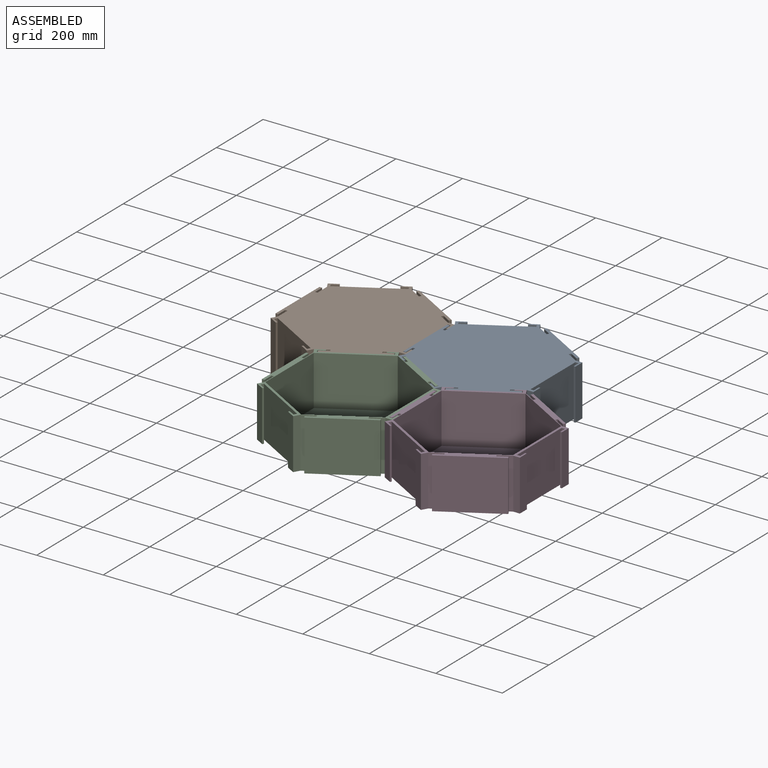
[diagram: assembled view]
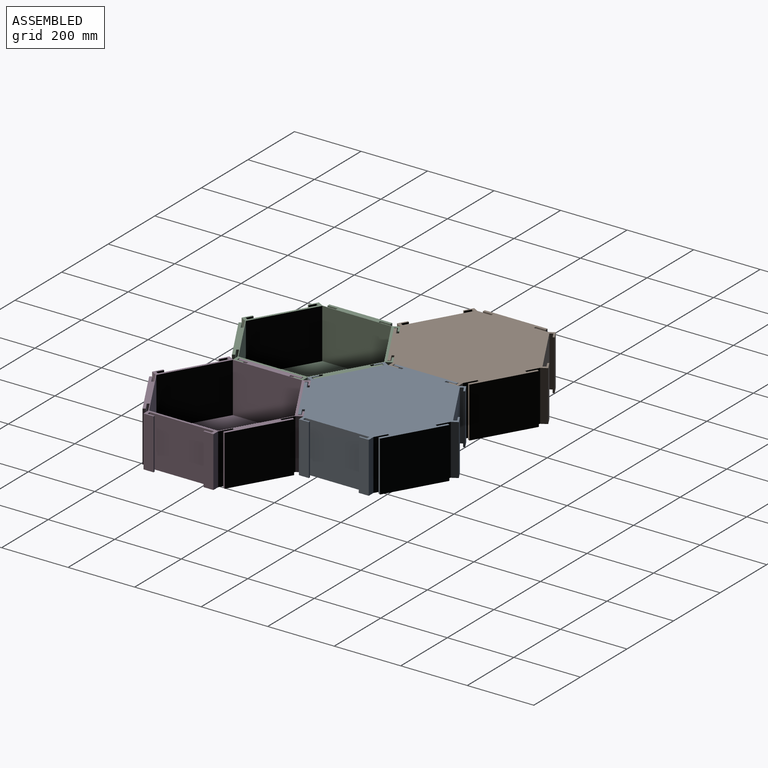
[diagram: assembled view, second angle]
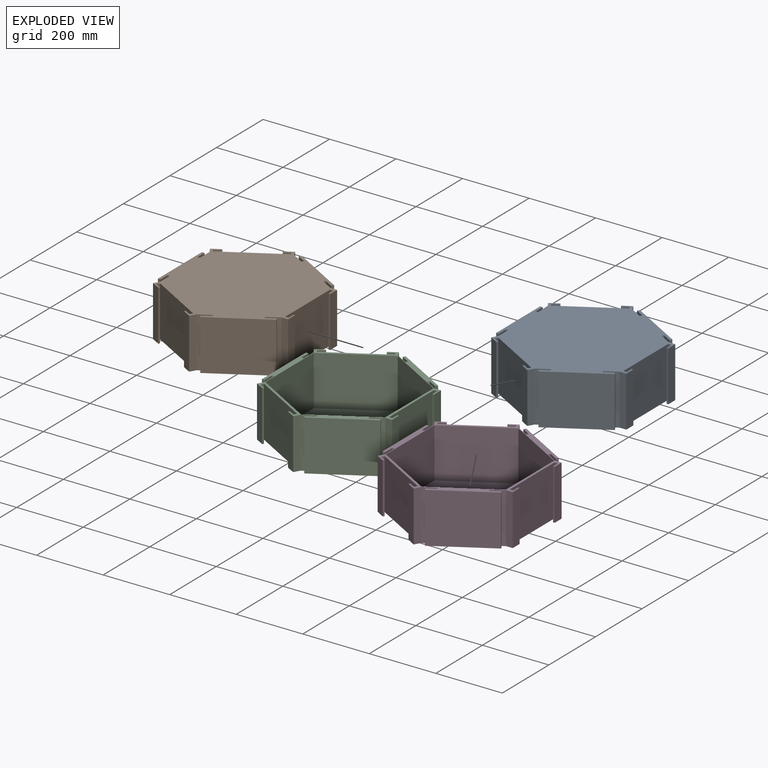
[diagram: exploded view]
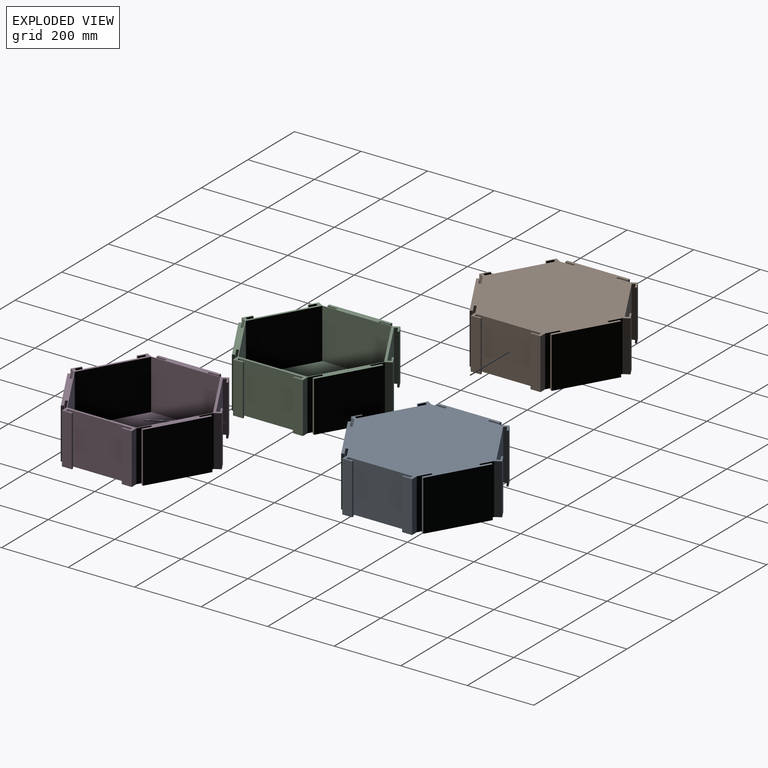
[diagram: exploded view, second angle]
ASSEMBLY  parts=4 mates=3
PART A: 69 faces, bbox 399x455x152 mm
  f0: plane 152x17.32mm, normal (0.87,0.5,0), area 3040mm2, adj f1,f13,f23,f24
  f1: plane 152x25.98mm, normal (-0.5,0.87,0), area 4560mm2, adj f0,f2,f23,f24
  f2: plane 152x4.33mm, normal (-0.87,-0.5,0), area 760mm2, adj f1,f3,f23,f24
  f3: plane 152x18.48mm, normal (0.5,-0.87,0), area 3243.6mm2, adj f2,f4,f23,f24
  f4: plane 152x8.66mm, normal (-0.87,-0.5,0), area 1520mm2, adj f3,f5,f23,f24
  f5: plane 167x152mm, normal (-0.5,0.87,0), area 29310.9mm2, adj f4,f6,f23,f24
  f6: plane 152x8.66mm, normal (0.87,0.5,0), area 1520mm2, adj f5,f7,f23,f24
  f7: plane 152x18.48mm, normal (0.5,-0.87,0), area 3243.6mm2, adj f6,f8,f23,f24
  f8: plane 152x4.33mm, normal (0.87,0.5,0), area 760mm2, adj f7,f9,f23,f24
  f9: plane 152x25.98mm, normal (-0.5,0.87,0), area 4560mm2, adj f8,f10,f23,f24
  f10: plane 152x17.32mm, normal (-0.87,-0.5,0), area 3040mm2, adj f9,f19,f23,f24
  f11: plane 152x40.66mm, normal (-1,0,0), area 6180.4mm2, adj f23,f24,f46,f57
  f12: plane 152x35.21mm, normal (0.5,-0.87,0), area 6180.4mm2, adj f23,f24,f39,f68
  f13: plane 152x35.21mm, normal (0.5,0.87,0), area 6180.4mm2, adj f0,f23,f24,f32
  f14: plane 207.85x150mm, normal (1,0,0), area 31176.9mm2, adj f15,f22,f23,f25
  f15: plane 180x150mm, normal (0.5,-0.87,0), area 31176.9mm2, adj f14,f16,f23,f25
  f16: plane 180x150mm, normal (-0.5,-0.87,0), area 31176.9mm2, adj f15,f17,f23,f25
  f17: plane 207.85x150mm, normal (-1,0,0), area 31176.9mm2, adj f16,f18,f23,f25
  f18: plane 180x150mm, normal (-0.5,0.87,0), area 31176.9mm2, adj f17,f22,f23,f25
  f19: plane 152x40.66mm, normal (-1,0,0), area 6180.4mm2, adj f10,f23,f24,f45
  f20: plane 152x35.21mm, normal (0.5,-0.87,0), area 6180.4mm2, adj f23,f24,f38,f56
  f21: plane 152x35.21mm, normal (0.5,0.87,0), area 6180.4mm2, adj f23,f24,f31,f67
  f22: plane 180x150mm, normal (0.5,0.87,0), area 31176.9mm2, adj f14,f18,f23,f25
  f23: plane 454.95x399mm, normal (0,0,1), area 14317.5mm2, adj f0,f1,f2,f3,f4,f5,f6,f7
  f24: plane 454.95x399mm, normal (0,0,-1), area 126554.4mm2, adj f0,f1,f2,f3,f4,f5,f6,f7
  f25: plane 415.69x360mm, normal (0,0,1), area 112236.9mm2, adj f14,f15,f16,f17,f18,f22
  f26: plane 152x25.98mm, normal (-0.5,-0.87,0), area 4560mm2, adj f23,f24,f27,f31
  f27: plane 152x6.93mm, normal (0.87,-0.5,0), area 1216mm2, adj f23,f24,f26,f28
  f28: plane 163.54x152mm, normal (0.5,0.87,0), area 28702.9mm2, adj f23,f24,f27,f29
  f29: plane 152x6.93mm, normal (-0.87,0.5,0), area 1216mm2, adj f23,f24,f28,f30
  f30: plane 152x25.98mm, normal (-0.5,-0.87,0), area 4560mm2, adj f23,f24,f29,f32
  f31: plane 152x6.06mm, normal (0.87,-0.5,0), area 1064mm2, adj f21,f23,f24,f26
  f32: plane 152x6.06mm, normal (-0.87,0.5,0), area 1064mm2, adj f13,f23,f24,f30
  f33: plane 152x25.98mm, normal (-0.5,0.87,0), area 4560mm2, adj f23,f24,f34,f38
  f34: plane 152x6.93mm, normal (-0.87,-0.5,0), area 1216mm2, adj f23,f24,f33,f35
  f35: plane 163.54x152mm, normal (0.5,-0.87,0), area 28702.9mm2, adj f23,f24,f34,f36
  f36: plane 152x6.93mm, normal (0.87,0.5,0), area 1216mm2, adj f23,f24,f35,f37
  f37: plane 152x25.98mm, normal (-0.5,0.87,0), area 4560mm2, adj f23,f24,f36,f39
  f38: plane 152x6.06mm, normal (-0.87,-0.5,0), area 1064mm2, adj f20,f23,f24,f33
  f39: plane 152x6.06mm, normal (0.87,0.5,0), area 1064mm2, adj f12,f23,f24,f37
  f40: plane 152x30mm, normal (1,0,0), area 4560mm2, adj f23,f24,f41,f45
  f41: plane 152x8mm, normal (0,1,0), area 1216mm2, adj f23,f24,f40,f42
  f42: plane 188.84x152mm, normal (-1,0,0), area 28702.9mm2, adj f23,f24,f41,f43
  f43: plane 152x8mm, normal (0,-1,0), area 1216mm2, adj f23,f24,f42,f44
  f44: plane 152x30mm, normal (1,0,0), area 4560mm2, adj f23,f24,f43,f46
  f45: plane 152x7mm, normal (0,1,0), area 1064mm2, adj f19,f23,f24,f40
  f46: plane 152x7mm, normal (0,-1,0), area 1064mm2, adj f11,f23,f24,f44
  f47: plane 152x25.98mm, normal (-0.5,-0.87,0), area 4560mm2, adj f23,f24,f48,f57
  f48: plane 152x4.33mm, normal (0.87,-0.5,0), area 760mm2, adj f23,f24,f47,f49
  f49: plane 152x18.48mm, normal (0.5,0.87,0), area 3243.6mm2, adj f23,f24,f48,f50
  f50: plane 152x8.66mm, normal (0.87,-0.5,0), area 1520mm2, adj f23,f24,f49,f51
  f51: plane 167x152mm, normal (-0.5,-0.87,0), area 29310.9mm2, adj f23,f24,f50,f52
  f52: plane 152x8.66mm, normal (-0.87,0.5,0), area 1520mm2, adj f23,f24,f51,f53
  f53: plane 152x18.48mm, normal (0.5,0.87,0), area 3243.6mm2, adj f23,f24,f52,f54
  f54: plane 152x4.33mm, normal (-0.87,0.5,0), area 760mm2, adj f23,f24,f53,f55
  f55: plane 152x25.98mm, normal (-0.5,-0.87,0), area 4560mm2, adj f23,f24,f54,f56
  f56: plane 152x17.32mm, normal (0.87,-0.5,0), area 3040mm2, adj f20,f23,f24,f55
  f57: plane 152x17.32mm, normal (-0.87,0.5,0), area 3040mm2, adj f11,f23,f24,f47
  f58: plane 152x30mm, normal (1,0,0), area 4560mm2, adj f23,f24,f59,f68
  f59: plane 152x5mm, normal (0,1,0), area 760mm2, adj f23,f24,f58,f60
  f60: plane 152x21.34mm, normal (-1,0,0), area 3243.6mm2, adj f23,f24,f59,f61
  f61: plane 152x10mm, normal (0,1,0), area 1520mm2, adj f23,f24,f60,f62
  f62: plane 192.84x152mm, normal (1,0,0), area 29310.9mm2, adj f23,f24,f61,f63
  f63: plane 152x10mm, normal (0,-1,0), area 1520mm2, adj f23,f24,f62,f64
  f64: plane 152x21.34mm, normal (-1,0,0), area 3243.6mm2, adj f23,f24,f63,f65
  f65: plane 152x5mm, normal (0,-1,0), area 760mm2, adj f23,f24,f64,f66
  f66: plane 152x30mm, normal (1,0,0), area 4560mm2, adj f23,f24,f65,f67
  f67: plane 152x20mm, normal (0,1,0), area 3040mm2, adj f21,f23,f24,f66
  f68: plane 152x20mm, normal (0,-1,0), area 3040mm2, adj f12,f23,f24,f58
PART B: same geometry as A
PART C: same geometry as A
PART D: same geometry as A
PLACE A rot(axis=(1,0,0),180deg) t=(665,485.55,152)mm
PLACE B rot(axis=(-1,0,0),180deg) t=(281,485.55,152)mm
PLACE C t=(473,153,0)mm
PLACE D rot(axis=(0,0,-1),120deg) t=(857,153,0)mm
MATE fastened D.f51 <-> A.f28  axis (-0.5,0.87,0) through (763.5,314.95,76)mm
MATE fastened B.f62 <-> A.f42  axis (1,0,0) through (468,485.55,76)mm
MATE fastened C.f28 <-> A.f5  axis (0.5,0.87,0) through (571.5,323.61,76)mm
